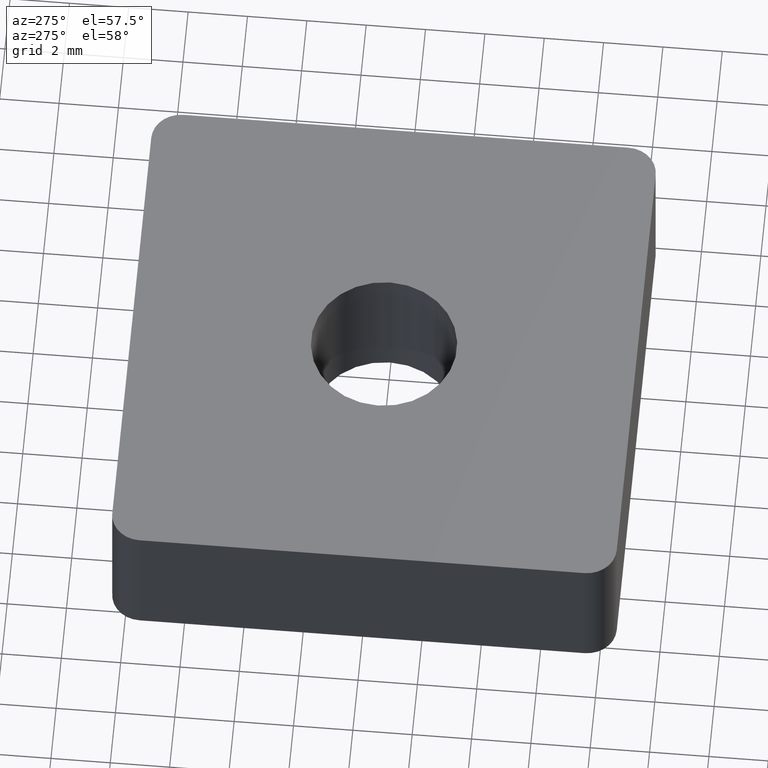
[diagram: clean part render]
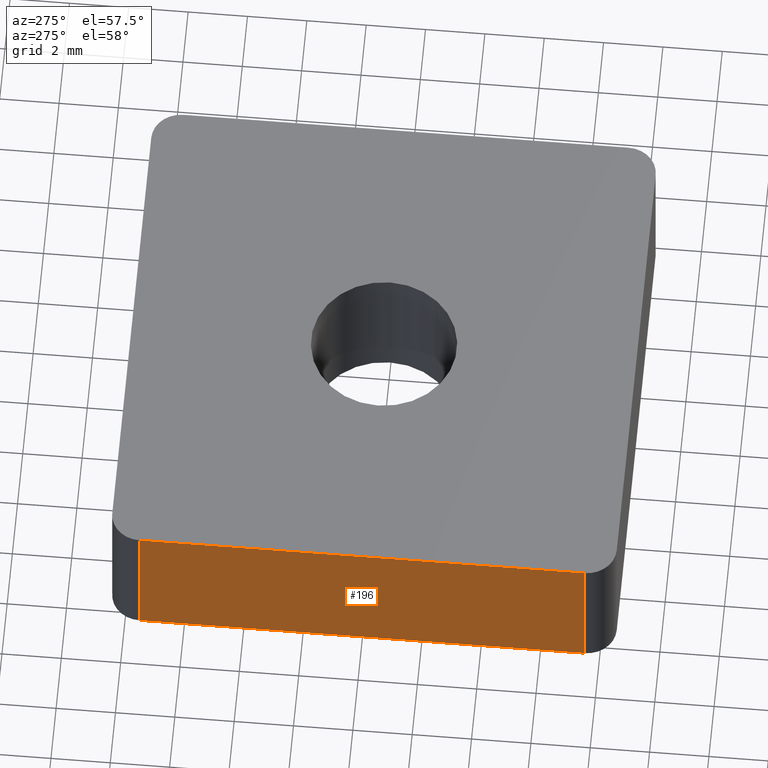
[diagram: same view with one face highlighted and labeled with its STEP entity id]
A machine part, auxiliary view. The second image highlights one B-rep face of the part: STEP entity #196.
In plain terms, the highlighted planar face has unit normal (1, 0, 0).
Its self-contained STEP definition (entity closure, byte-faithful):
#17=PLANE('',#232);
#24=FACE_OUTER_BOUND('',#35,.T.);
#35=EDGE_LOOP('',(#140,#141,#142,#143));
#48=LINE('',#321,#65);
#49=LINE('',#323,#66);
#50=LINE('',#325,#67);
#51=LINE('',#326,#68);
#65=VECTOR('',#261,15.);
#66=VECTOR('',#262,5.);
#67=VECTOR('',#263,15.);
#68=VECTOR('',#264,5.);
#93=VERTEX_POINT('',#319);
#94=VERTEX_POINT('',#320);
#95=VERTEX_POINT('',#322);
#96=VERTEX_POINT('',#324);
#112=EDGE_CURVE('',#93,#94,#48,.T.);
#113=EDGE_CURVE('',#93,#95,#49,.T.);
#114=EDGE_CURVE('',#95,#96,#50,.T.);
#115=EDGE_CURVE('',#96,#94,#51,.T.);
#140=ORIENTED_EDGE('',*,*,#112,.F.);
#141=ORIENTED_EDGE('',*,*,#113,.T.);
#142=ORIENTED_EDGE('',*,*,#114,.T.);
#143=ORIENTED_EDGE('',*,*,#115,.T.);
#196=ADVANCED_FACE('',(#24),#17,.F.);
#232=AXIS2_PLACEMENT_3D('',#318,#259,#260);
#259=DIRECTION('center_axis',(1.,0.,0.));
#260=DIRECTION('ref_axis',(0.,0.,-1.));
#261=DIRECTION('',(0.,-1.,0.));
#262=DIRECTION('',(0.,0.,-1.));
#263=DIRECTION('',(0.,-1.,0.));
#264=DIRECTION('',(0.,0.,1.));
#318=CARTESIAN_POINT('Origin',(-8.5,-8.24999999999998,0.25));
#319=CARTESIAN_POINT('',(-8.5,7.50000000000001,0.));
#320=CARTESIAN_POINT('',(-8.5,-7.49999999999998,0.));
#321=CARTESIAN_POINT('',(-8.5,7.50000000000001,0.));
#322=CARTESIAN_POINT('',(-8.5,7.50000000000001,-5.));
#323=CARTESIAN_POINT('',(-8.5,7.50000000000001,0.));
#324=CARTESIAN_POINT('',(-8.5,-7.49999999999998,-5.));
#325=CARTESIAN_POINT('',(-8.5,7.50000000000001,-5.));
#326=CARTESIAN_POINT('',(-8.5,-7.49999999999998,-5.));